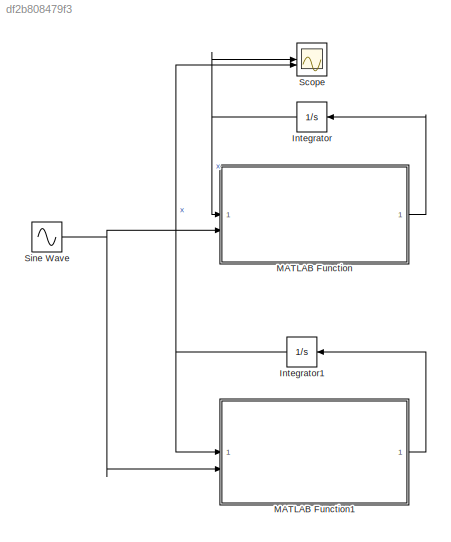
MODEL slx_df2b808479f3
KIND model
CONFIG AbsTol = auto
CONFIG EnableMultiTasking = off
CONFIG FixedStep = auto
CONFIG MaxStep = auto
CONFIG MinStep = auto
CONFIG RelTol = 1e-3
CONFIG SampleTimeConstraint = Unconstrained
CONFIG SolverName = VariableStepAuto
CONFIG StartTime = 0.0
CONFIG StopTime = 20
BLOCK [Integrator] Integrator
  InitialCondition = zeros(4,1)
  NameLocation = top
BLOCK [Integrator] Integrator1
  InitialCondition = zeros(4,1)
  NameLocation = top
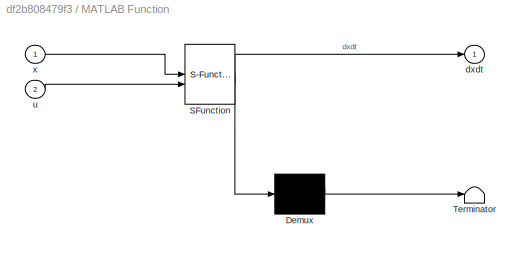
BLOCK [SubSystem] MATLAB Function
  ErrorFcn = Stateflow.Translate.translate
  PermitHierarchicalResolution = ExplicitOnly
  SFBlockType = MATLAB Function
  TreatAsAtomicUnit = on
BLOCK [Demux] MATLAB Function/ Demux 
  Outputs = 1
BLOCK [S-Function] MATLAB Function/ SFunction 
  EnableBusSupport = on
  FunctionName = sf_sfun
  Parameters = par
  PortCounts = [2 2]
  SFcnIsStateOwnerBlock = off
  SFunctionDeploymentMode = off
  Tag = Stateflow S-Function 2
BLOCK [Terminator] MATLAB Function/ Terminator 
BLOCK [Outport] MATLAB Function/dxdt
BLOCK [Inport] MATLAB Function/u
  Port = 2
BLOCK [Inport] MATLAB Function/x
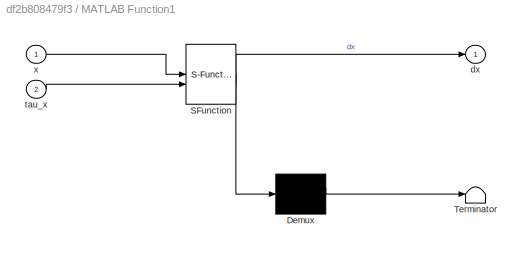
BLOCK [SubSystem] MATLAB Function1
  ErrorFcn = Stateflow.Translate.translate
  PermitHierarchicalResolution = ExplicitOnly
  SFBlockType = MATLAB Function
  TreatAsAtomicUnit = on
BLOCK [Demux] MATLAB Function1/ Demux 
  Outputs = 1
BLOCK [S-Function] MATLAB Function1/ SFunction 
  EnableBusSupport = on
  FunctionName = sf_sfun
  Parameters = par
  PortCounts = [2 2]
  SFcnIsStateOwnerBlock = off
  SFunctionDeploymentMode = off
  Tag = Stateflow S-Function 1
BLOCK [Terminator] MATLAB Function1/ Terminator 
BLOCK [Outport] MATLAB Function1/dx
BLOCK [Inport] MATLAB Function1/tau_x
  Port = 2
BLOCK [Inport] MATLAB Function1/x
BLOCK [Scope] Scope
  Floating = off
  NumInputPorts = 2
  ScopeSpecificationString = Simulink.scopes.TimeScopeBlockCfg('CurrentConfiguration', extmgr.ConfigurationSet(extmgr.Configuration('Core','General UI',true),extmgr.Configuration('Core','Source UI',true),extmgr.Configuration('Sources','WiredSimulink',true),extmgr.Configuration('Visuals','Time Domain',true,'SerializedDisplays',{struct('MinYLimReal','-1313.44774','MaxYLimReal','150.0327','YLabelReal','','MinYLimMag','  0.00000'...<+2267ch>
BLOCK [Sin] Sine Wave
  Amplitude = 0.001
  Frequency = 0.001
  SampleTime = 0
NET Integrator1:1 -> MATLAB Function1:1, Scope:2
NET Integrator:1 -> MATLAB Function:1, Scope:1
LINE MATLAB Function1:1 -> Integrator1:1
LINE MATLAB Function:1 -> Integrator:1
NET Sine Wave:1 -> MATLAB Function1:2, MATLAB Function:2
note: NET lines group one-source signal fan-out (src -> all destinations, sorted); 1:1 wires keep LINE
CHART MATLAB Function states=1 transitions=1
  STATE_LABEL 'eML_blk_kernel()'
  STATE_LABEL 'SCRIPT:\nfunction dxdt = ball_and_beam(x, u, par)\n%#codegen\ndxdt = ball_and_beam(x, u, par);\n'
CHART MATLAB Function1 states=1 transitions=1
  STATE_LABEL 'eML_blk_kernel()'
  STATE_LABEL 'SCRIPT:\nfunction dx = ball_and_beam_ex1(x, tau_x, par)\n\n    g = par.g;\n    mb = par.mb;\n    Jb = par.Jb;\n    Jp = par.Jp;\n\n    x1 = x(1);\n    x2 = x(2);\n    x3 = x(3);\n    x4 = x(4);\n\n    f = [                        x2;\n    (5*x1*x4^2)/7 - (5*g*sin(x3))/7;\n                                 x4;\n                                  0];\n    gx = [0; 0; 0; 1];\n    u = -(2*mb*x1*x2*x4 - tau_x + g*mb*x1*co...<+51ch>'
CHART  states=0 transitions=0
CHART  states=0 transitions=0
